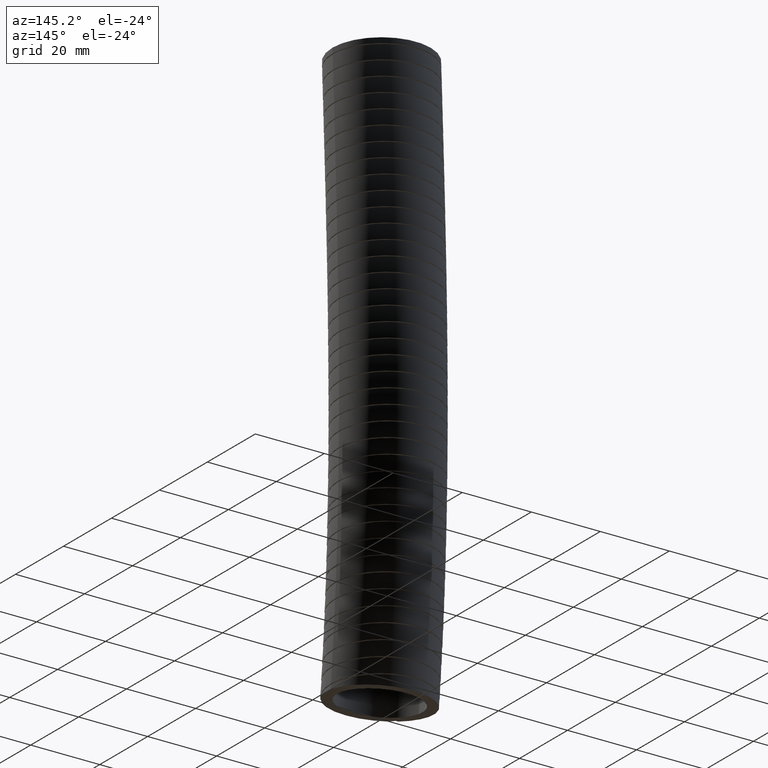
[diagram: clean part render]
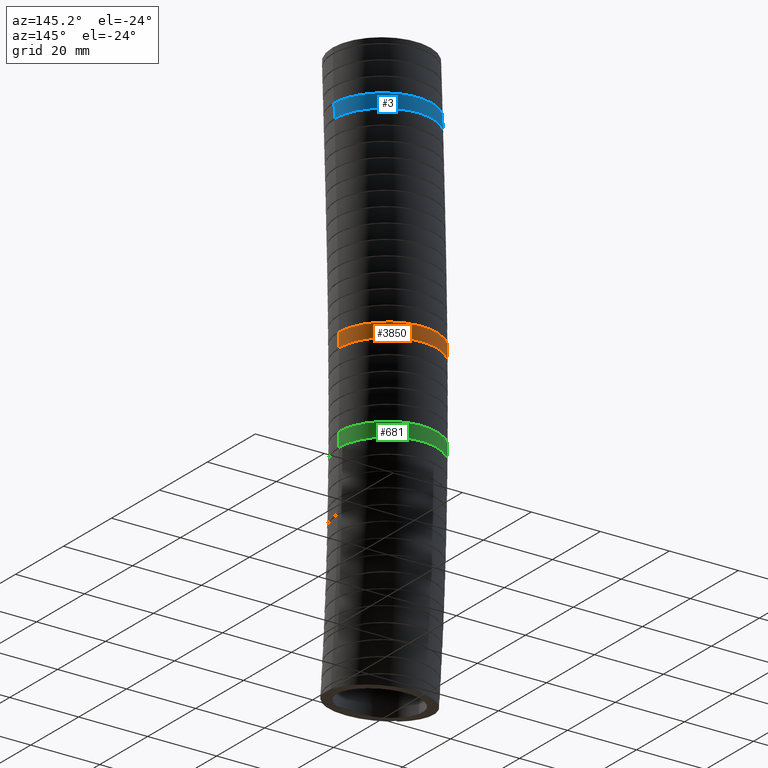
[diagram: same view with three faces highlighted in distinct colors, each labeled with its STEP entity id]
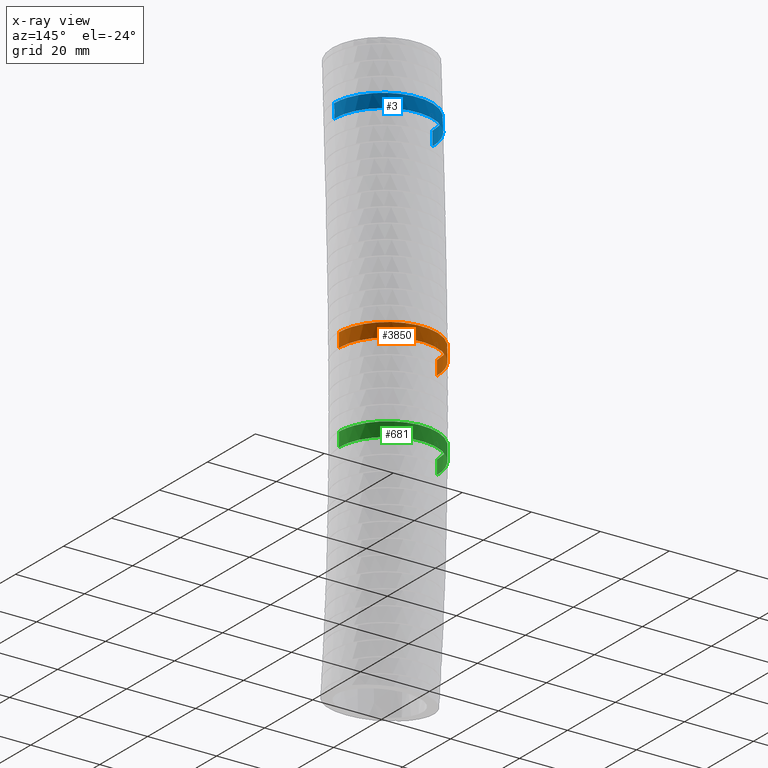
[diagram: x-ray of the same camera — body ghosted, the three highlighted faces saturated]
A machine part, auxiliary view with three faces highlighted in distinct colors.
The next image is the same camera in x-ray (body ghosted, the three faces saturated) — at least one of them is partly hidden behind the body in this view.
Their STEP definitions:

[orange] entity #3850 — the highlighted face is a freeform B-spline surface patch.
#701 = VERTEX_POINT ( 'NONE', #19093 ) ;
#757 = VERTEX_POINT ( 'NONE', #19967 ) ;
#762 = EDGE_CURVE ( 'NONE', #701, #757, #20122, .T. ) ;
#794 = EDGE_CURVE ( 'NONE', #757, #797, #20483, .T. ) ;
#795 = VERTEX_POINT ( 'NONE', #20591 ) ;
#797 = VERTEX_POINT ( 'NONE', #20590 ) ;
#799 = EDGE_CURVE ( 'NONE', #795, #797, #20588, .T. ) ;
#3525 = ORIENTED_EDGE ( 'NONE', *, *, #3544, .T. ) ;
#3544 = EDGE_CURVE ( 'NONE', #795, #701, #7886, .T. ) ;
#3656 = EDGE_LOOP ( 'NONE', ( #3659, #3525, #10811, #10791 ) ) ;
#3659 = ORIENTED_EDGE ( 'NONE', *, *, #799, .F. ) ;
#3850 = ADVANCED_FACE ( 'NONE', ( #8007 ), #8064, .T. ) ;
#7859 = CARTESIAN_POINT ( 'NONE',  ( 0.07281541185949587400, 0.6577474294353369300, -2.958170664740729500 ) ) ;
#7860 = CARTESIAN_POINT ( 'NONE',  ( 0.03641259358145013100, 0.6613125928640775100, -2.958170664740728200 ) ) ;
#7861 = CARTESIAN_POINT ( 'NONE',  ( 0.01799361367819290700, 0.6622130398673121700, -2.958170664740728200 ) ) ;
#7862 = CARTESIAN_POINT ( 'NONE',  ( -0.03737686550679218000, 0.6621672653055393800, -2.958170664740728200 ) ) ;
#7863 = CARTESIAN_POINT ( 'NONE',  ( -0.07371368626435011200, 0.6585249466797213900, -2.958170664740727800 ) ) ;
#7864 = CARTESIAN_POINT ( 'NONE',  ( -0.1273835313944741100, 0.6478307449109930200, -2.958170664740726900 ) ) ;
#7865 = CARTESIAN_POINT ( 'NONE',  ( -0.1451332300664742400, 0.6433878451257016900, -2.958170664740726000 ) ) ;
#7866 = CARTESIAN_POINT ( 'NONE',  ( -0.1803447848891697500, 0.6326997353365202400, -2.958170664740726000 ) ) ;
#7867 = CARTESIAN_POINT ( 'NONE',  ( -0.1977990139609515400, 0.6264428737248738400, -2.958170664740726900 ) ) ;
#7868 = CARTESIAN_POINT ( 'NONE',  ( -0.2485740770956668700, 0.6053747066220756000, -2.958170664740726900 ) ) ;
#7869 = CARTESIAN_POINT ( 'NONE',  ( -0.2807212928337236000, 0.5881792286645165500, -2.958170664740725500 ) ) ;
#7870 = CARTESIAN_POINT ( 'NONE',  ( -0.3263939026323216000, 0.5576721087831396600, -2.958170664740726400 ) ) ;
#7871 = CARTESIAN_POINT ( 'NONE',  ( -0.3412628962372449800, 0.5466502811199266400, -2.958170664740726900 ) ) ;
#7872 = CARTESIAN_POINT ( 'NONE',  ( -0.3697381279144778000, 0.5232682409711174600, -2.958170664740726900 ) ) ;
#7873 = CARTESIAN_POINT ( 'NONE',  ( -0.3832976946185955300, 0.5109605346508445700, -2.958170664740726900 ) ) ;
#7874 = CARTESIAN_POINT ( 'NONE',  ( -0.4219989440421017000, 0.4722389226610596000, -2.958170664740727800 ) ) ;
#7875 = CARTESIAN_POINT ( 'NONE',  ( -0.4451821459224016300, 0.4440437770565475200, -2.958170664740726400 ) ) ;
#7876 = CARTESIAN_POINT ( 'NONE',  ( -0.4759094171953824300, 0.3980698253761954000, -2.958170664740726900 ) ) ;
#7877 = CARTESIAN_POINT ( 'NONE',  ( -0.4854088188179600500, 0.3822047686110250400, -2.958170664740729100 ) ) ;
#7878 = CARTESIAN_POINT ( 'NONE',  ( -0.5026527855643226900, 0.3499168368783833700, -2.958170664740728700 ) ) ;
#7879 = CARTESIAN_POINT ( 'NONE',  ( -0.5182405616830390000, 0.3169271009912947300, -2.958170664740723800 ) ) ;
#7880 = CARTESIAN_POINT ( 'NONE',  ( -0.5305550106083166700, 0.2825503057978249200, -2.958170664740726900 ) ) ;
#7881 = CARTESIAN_POINT ( 'NONE',  ( -0.5412049049548247600, 0.2474681622590713700, -2.958170664740726900 ) ) ;
#7882 = CARTESIAN_POINT ( 'NONE',  ( -0.5457138787163375900, 0.2294722666819844200, -2.958170664740725500 ) ) ;
#7883 = CARTESIAN_POINT ( 'NONE',  ( -0.5564557007883144100, 0.1753596501967865700, -2.958170664740726400 ) ) ;
#7884 = CARTESIAN_POINT ( 'NONE',  ( -0.5600000000000000500, 0.1390547264894816700, -2.958170664740726900 ) ) ;
#7885 = CARTESIAN_POINT ( 'NONE',  ( -0.5600000000000000500, 0.1025245713177013500, -2.958170664740725500 ) ) ;
#7886 = B_SPLINE_CURVE_WITH_KNOTS ( 'NONE', 3,
 ( #7885, #7884, #7883, #7882, #7881, #7880, #7879, #7878, #7877, #7876, #7875, #7874, #7873, #7872, #7871, #7870, #7869, #7868, #7867, #7866, #7865, #7864, #7863, #7862, #7861, #7860, #7859, #7935, #7934, #7932, #7931, #7930, #7929, #7928, #7927, #7926, #7925, #7924, #7923, #7922, #7921, #7920, #7919, #7918, #7917, #7916, #7915, #7914, #7913 ),
 .UNSPECIFIED., .F., .F.,
 ( 4, 2, 2, 1, 2, 2, 2, 2, 2, 2, 2, 2, 2, 2, 2, 2, 2, 2, 2, 2, 2, 2, 2, 2, 4 ),
 ( 0.04445736551528427900, 0.04723536059654842600, 0.04862435813718049600, 0.05001335567781256500, 0.05140235321844463500, 0.05279135075907670500, 0.05556934584034085200, 0.05695834338097291400, 0.05834734092160499100, 0.06112533600286911700, 0.06251433354350119400, 0.06390333108413326400, 0.06668132616539738900, 0.06807032370602945900, 0.06945932124666151500, 0.07084831878729358500, 0.07223731632792565500, 0.07501531140918979400, 0.07779330649045393400, 0.08057130157171807400, 0.08196029911235014300, 0.08334929665298219900, 0.08473829419361425500, 0.08612729173424632500, 0.08890528681551046500 ),
 .UNSPECIFIED. ) ;
#7913 = CARTESIAN_POINT ( 'NONE',  ( 0.5600000000000000500, 0.1025245713120929900, -2.958170664548905200 ) ) ;
#7914 = CARTESIAN_POINT ( 'NONE',  ( 0.5599999999999999400, 0.1395062146662345600, -2.958170664548904800 ) ) ;
#7915 = CARTESIAN_POINT ( 'NONE',  ( 0.5563679296429032700, 0.1761039911398782100, -2.958170664740728700 ) ) ;
#7916 = CARTESIAN_POINT ( 'NONE',  ( 0.5454932077036728200, 0.2304272125478621100, -2.958170664740728200 ) ) ;
#7917 = CARTESIAN_POINT ( 'NONE',  ( 0.5409779743903624400, 0.2483068011436788100, -2.958170664740729100 ) ) ;
#7918 = CARTESIAN_POINT ( 'NONE',  ( 0.5302996767327332600, 0.2832960891135900500, -2.958170664740728700 ) ) ;
#7919 = CARTESIAN_POINT ( 'NONE',  ( 0.5241263467217538400, 0.3004581717169669300, -2.958170664740727800 ) ) ;
#7920 = CARTESIAN_POINT ( 'NONE',  ( 0.5101282139220985100, 0.3341239474990592200, -2.958170664740728200 ) ) ;
#7921 = CARTESIAN_POINT ( 'NONE',  ( 0.5023034447316122600, 0.3506276540722990700, -2.958170664740729500 ) ) ;
#7922 = CARTESIAN_POINT ( 'NONE',  ( 0.4849714669887947900, 0.3829643324065339900, -2.958170664740729100 ) ) ;
#7923 = CARTESIAN_POINT ( 'NONE',  ( 0.4754064947121255900, 0.3988735621575353300, -2.958170664740728200 ) ) ;
#7924 = CARTESIAN_POINT ( 'NONE',  ( 0.4447038353819582300, 0.4446530736373529600, -2.958170664740728200 ) ) ;
#7925 = CARTESIAN_POINT ( 'NONE',  ( 0.4215115072294545200, 0.4727985276330988200, -2.958170664740728200 ) ) ;
#7926 = CARTESIAN_POINT ( 'NONE',  ( 0.3697708653891791900, 0.5244210032525931100, -2.958170664740728200 ) ) ;
#7927 = CARTESIAN_POINT ( 'NONE',  ( 0.3409192236709044400, 0.5480325452588942200, -2.958170664740726900 ) ) ;
#7928 = CARTESIAN_POINT ( 'NONE',  ( 0.2800769275307427000, 0.5885455779404352700, -2.958170664740726900 ) ) ;
#7929 = CARTESIAN_POINT ( 'NONE',  ( 0.2479018694818893600, 0.6057127701167328600, -2.958170664740728200 ) ) ;
#7930 = CARTESIAN_POINT ( 'NONE',  ( 0.1969674052194947700, 0.6267573335094784900, -2.958170664740728200 ) ) ;
#7931 = CARTESIAN_POINT ( 'NONE',  ( 0.1794806754649387600, 0.6329907723426926300, -2.958170664740724200 ) ) ;
#7932 = CARTESIAN_POINT ( 'NONE',  ( 0.1443510144729959500, 0.6435951535733548400, -2.958170664740726000 ) ) ;
#7934 = CARTESIAN_POINT ( 'NONE',  ( 0.1266251110751217800, 0.6480067808224265800, -2.958170664740726000 ) ) ;
#7935 = CARTESIAN_POINT ( 'NONE',  ( 0.09085731350190118200, 0.6550829393959041200, -2.958170664740726900 ) ) ;
#8007 = FACE_OUTER_BOUND ( 'NONE', #3656, .T. ) ;
#8050 = CARTESIAN_POINT ( 'NONE',  ( 0.5600000000000000500, -1.038554811762124600, -5.312990694533671600 ) ) ;
#8051 = CARTESIAN_POINT ( 'NONE',  ( 0.5600000000000000500, -0.9771104778072428100, -3.204996504641237600 ) ) ;
#8052 = CARTESIAN_POINT ( 'NONE',  ( 0.5600000000000001600, -1.065674484793228500, -1.218515421415292500 ) ) ;
#8053 = CARTESIAN_POINT ( 'NONE',  ( 0.5600000000000000500, -1.120000000000000100, 0.0000000000000000000 ) ) ;
#8054 = CARTESIAN_POINT ( 'NONE',  ( 0.5600000000000000500, -0.03000000000000004700, -6.570000000000001200 ) ) ;
#8055 = CARTESIAN_POINT ( 'NONE',  ( 0.5599999999999999400, -0.01258014398173752300, -6.380031713690432800 ) ) ;
#8056 = CARTESIAN_POINT ( 'NONE',  ( 0.5599999999999999400, 0.07545784880698538900, -5.419953363865131400 ) ) ;
#8057 = CARTESIAN_POINT ( 'NONE',  ( 0.5599999999999999400, 0.1443774054838783700, -3.232434222864085900 ) ) ;
#8058 = CARTESIAN_POINT ( 'NONE',  ( 0.5600000000000000500, 0.05489119717643108800, -1.228947034284315200 ) ) ;
#8060 = CARTESIAN_POINT ( 'NONE',  ( 0.5600000000000000500, 0.0000000000000000000, 0.0000000000000000000 ) ) ;
#8064 =( BOUNDED_SURFACE ( )  B_SPLINE_SURFACE ( 3, 3, ( 
 ( #8060, #8058, #8057, #8056, #8055, #8054 ),
 ( #8053, #8052, #8051, #8050, #8098, #8097 ),
 ( #8096, #8095, #8094, #8093, #8092, #8091 ),
 ( #8090, #8089, #8088, #8087, #8086, #8085 ),
 ( #8084, #8083, #8082, #8081, #8080, #8079 ),
 ( #8078, #8077, #8076, #8075, #8074, #8073 ),
 ( #8072, #8071, #8070, #8069, #8068, #8067 ) ),
 .UNSPECIFIED., .F., .F., .F. ) 
 B_SPLINE_SURFACE_WITH_KNOTS ( ( 4, 3, 4 ),
 ( 4, 1, 1, 4 ),
 ( 0.0000000000000000000, 0.5000000000000000000, 1.000000000000000000 ),
 ( 0.0000000000000000000, 0.5599999999999999400, 0.9129383075960209000, 1.000000000000000000 ),
 .UNSPECIFIED. ) 
 GEOMETRIC_REPRESENTATION_ITEM ( )  RATIONAL_B_SPLINE_SURFACE ( (
 ( 1.000000000000000000, 1.000000000000000000, 1.000000000000000200, 1.000000000000000000, 1.000000000000000000, 1.000000000000000000),
 ( 0.3333333333333333100, 0.3333333333333333100, 0.3333333333333333100, 0.3333333333333333100, 0.3333333333333333100, 0.3333333333333333100),
 ( 0.3333333333333333100, 0.3333333333333333100, 0.3333333333333333100, 0.3333333333333333100, 0.3333333333333333100, 0.3333333333333333100),
 ( 1.000000000000000000, 1.000000000000000000, 1.000000000000000200, 1.000000000000000000, 1.000000000000000000, 1.000000000000000000),
 ( 0.3333333333333333100, 0.3333333333333333100, 0.3333333333333333100, 0.3333333333333333100, 0.3333333333333333100, 0.3333333333333333100),
 ( 0.3333333333333333100, 0.3333333333333333100, 0.3333333333333333100, 0.3333333333333333100, 0.3333333333333333100, 0.3333333333333333100),
 ( 1.000000000000000000, 1.000000000000000000, 1.000000000000000200, 1.000000000000000000, 1.000000000000000000, 1.000000000000000000) ) ) 
 REPRESENTATION_ITEM ( '' )  SURFACE ( )  );
#8067 = CARTESIAN_POINT ( 'NONE',  ( 0.5600000000000000500, -0.03000000000000004700, -6.570000000000001200 ) ) ;
#8068 = CARTESIAN_POINT ( 'NONE',  ( 0.5599999999999999400, -0.01258014398173752300, -6.380031713690432800 ) ) ;
#8069 = CARTESIAN_POINT ( 'NONE',  ( 0.5599999999999999400, 0.07545784880698538900, -5.419953363865131400 ) ) ;
#8070 = CARTESIAN_POINT ( 'NONE',  ( 0.5599999999999999400, 0.1443774054838783700, -3.232434222864085900 ) ) ;
#8071 = CARTESIAN_POINT ( 'NONE',  ( 0.5600000000000000500, 0.05489119717643108800, -1.228947034284315200 ) ) ;
#8072 = CARTESIAN_POINT ( 'NONE',  ( 0.5600000000000000500, 0.0000000000000000000, 0.0000000000000000000 ) ) ;
#8073 = CARTESIAN_POINT ( 'NONE',  ( 0.5600000000000000500, 1.079646258180000800, -6.721938085110754600 ) ) ;
#8074 = CARTESIAN_POINT ( 'NONE',  ( 0.5600000000000000500, 1.097787370148356700, -6.524540619502538200 ) ) ;
#8075 = CARTESIAN_POINT ( 'NONE',  ( 0.5600000000000000500, 1.189470509376095100, -5.526916033196590300 ) ) ;
#8076 = CARTESIAN_POINT ( 'NONE',  ( 0.5600000000000000500, 1.265865288774999700, -3.259871941086932300 ) ) ;
#8077 = CARTESIAN_POINT ( 'NONE',  ( 0.5600000000000001600, 1.175456879146091100, -1.239378647153337200 ) ) ;
#8078 = CARTESIAN_POINT ( 'NONE',  ( 0.5600000000000000500, 1.120000000000000100, 0.0000000000000000000 ) ) ;
#8079 = CARTESIAN_POINT ( 'NONE',  ( -0.5599999999999999400, 1.079646258180000800, -6.721938085110754600 ) ) ;
#8080 = CARTESIAN_POINT ( 'NONE',  ( -0.5599999999999999400, 1.097787370148356700, -6.524540619502538200 ) ) ;
#8081 = CARTESIAN_POINT ( 'NONE',  ( -0.5599999999999999400, 1.189470509376095100, -5.526916033196590300 ) ) ;
#8082 = CARTESIAN_POINT ( 'NONE',  ( -0.5599999999999999400, 1.265865288774999700, -3.259871941086932300 ) ) ;
#8083 = CARTESIAN_POINT ( 'NONE',  ( -0.5599999999999999400, 1.175456879146091100, -1.239378647153337200 ) ) ;
#8084 = CARTESIAN_POINT ( 'NONE',  ( -0.5599999999999999400, 1.120000000000000100, 0.0000000000000000000 ) ) ;
#8085 = CARTESIAN_POINT ( 'NONE',  ( -0.5600000000000000500, -0.02999999999999997800, -6.570000000000001200 ) ) ;
#8086 = CARTESIAN_POINT ( 'NONE',  ( -0.5599999999999999400, -0.01258014398173745500, -6.380031713690432800 ) ) ;
#8087 = CARTESIAN_POINT ( 'NONE',  ( -0.5599999999999999400, 0.07545784880698545900, -5.419953363865131400 ) ) ;
#8088 = CARTESIAN_POINT ( 'NONE',  ( -0.5599999999999999400, 0.1443774054838784200, -3.232434222864085900 ) ) ;
#8089 = CARTESIAN_POINT ( 'NONE',  ( -0.5600000000000000500, 0.05489119717643116400, -1.228947034284315200 ) ) ;
#8090 = CARTESIAN_POINT ( 'NONE',  ( -0.5600000000000000500, 6.858022075225177600E-017, 0.0000000000000000000 ) ) ;
#8091 = CARTESIAN_POINT ( 'NONE',  ( -0.5600000000000001600, -1.139646258180001100, -6.418061914889248600 ) ) ;
#8092 = CARTESIAN_POINT ( 'NONE',  ( -0.5600000000000001600, -1.122947658111831800, -6.235522807878326500 ) ) ;
#8093 = CARTESIAN_POINT ( 'NONE',  ( -0.5600000000000000500, -1.038554811762124200, -5.312990694533671600 ) ) ;
#8094 = CARTESIAN_POINT ( 'NONE',  ( -0.5600000000000000500, -0.9771104778072428100, -3.204996504641237600 ) ) ;
#8095 = CARTESIAN_POINT ( 'NONE',  ( -0.5600000000000001600, -1.065674484793228500, -1.218515421415292500 ) ) ;
#8096 = CARTESIAN_POINT ( 'NONE',  ( -0.5600000000000001600, -1.119999999999999900, 0.0000000000000000000 ) ) ;
#8097 = CARTESIAN_POINT ( 'NONE',  ( 0.5600000000000000500, -1.139646258180001100, -6.418061914889248600 ) ) ;
#8098 = CARTESIAN_POINT ( 'NONE',  ( 0.5600000000000000500, -1.122947658111831800, -6.235522807878326500 ) ) ;
#10791 = ORIENTED_EDGE ( 'NONE', *, *, #794, .T. ) ;
#10811 = ORIENTED_EDGE ( 'NONE', *, *, #762, .T. ) ;
#19093 = CARTESIAN_POINT ( 'NONE',  ( 0.5600000000000000500, 0.1025245713120929900, -2.958170664548905200 ) ) ;
#19967 = CARTESIAN_POINT ( 'NONE',  ( 0.5599999999999999400, 0.1045980520094049500, -3.118156290294110000 ) ) ;
#20116 = CARTESIAN_POINT ( 'NONE',  ( 0.5599999999999999400, 0.1045980520094049500, -3.118156290294110000 ) ) ;
#20117 = CARTESIAN_POINT ( 'NONE',  ( 0.5600000000000000500, 0.1039969361713812000, -3.064831539776179200 ) ) ;
#20118 = CARTESIAN_POINT ( 'NONE',  ( 0.5600000000000000500, 0.1033042077673191600, -3.011502931831870900 ) ) ;
#20119 = CARTESIAN_POINT ( 'NONE',  ( 0.5600000000000000500, 0.1025245713120929900, -2.958170664548905200 ) ) ;
#20122 = B_SPLINE_CURVE_WITH_KNOTS ( 'NONE', 3,
 ( #20119, #20118, #20117, #20116 ),
 .UNSPECIFIED., .F., .F.,
 ( 4, 4 ),
 ( 0.4495108017290206400, 0.4738437672123378400 ),
 .UNSPECIFIED. ) ;
#20306 = CARTESIAN_POINT ( 'NONE',  ( -0.3967568525654982500, 0.5007891839987864700, -3.118156290485968500 ) ) ;
#20308 = CARTESIAN_POINT ( 'NONE',  ( -0.3697210969874879000, 0.5253152074349613000, -3.118156290485969900 ) ) ;
#20309 = CARTESIAN_POINT ( 'NONE',  ( -0.3414072715376542100, 0.5485696877204677700, -3.118156290485970300 ) ) ;
#20483 = B_SPLINE_CURVE_WITH_KNOTS ( 'NONE', 3,
 ( #20569, #20568, #20567, #20566, #20565, #20564, #20563, #20562, #20561, #20560, #20559, #20558, #20557, #20556, #20555, #20554, #20553, #20552, #20551, #20550, #20549, #20548, #20547, #20546, #20545, #20544, #20543, #20542, #20541, #20540, #20539, #20538, #20537, #20536, #20309, #20308, #20306, #20603, #20602, #20601, #20600, #20599, #20598, #20597, #20596, #20595, #20594, #20593, #20592 ),
 .UNSPECIFIED., .F., .F.,
 ( 4, 2, 2, 2, 2, 2, 2, 2, 2, 2, 2, 2, 2, 2, 2, 2, 2, 2, 1, 2, 2, 2, 2, 2, 4 ),
 ( 0.0000000000000000000, 0.001404105079548623900, 0.002808210159097247700, 0.005616420318194498100, 0.007020525397743124600, 0.008424630477291750200, 0.01123284063638900300, 0.01263694571593762400, 0.01404105079548624900, 0.01684926095458350000, 0.01965747111368075200, 0.02106157619322937500, 0.02246568127277800300, 0.02527389143187524700, 0.02667799651142387400, 0.02808210159097249800, 0.03089031175006974300, 0.03229441682961836600, 0.03369852190916699400, 0.03510262698871562100, 0.03650673206826424200, 0.03931494222736149600, 0.04071904730691012400, 0.04212315238645875100, 0.04493136254555600600 ),
 .UNSPECIFIED. ) ;
#20536 = CARTESIAN_POINT ( 'NONE',  ( -0.3265238152580373600, 0.5596164367366776000, -3.118156290485969000 ) ) ;
#20537 = CARTESIAN_POINT ( 'NONE',  ( -0.2806143821787525100, 0.5902863823160545700, -3.118156290485969900 ) ) ;
#20538 = CARTESIAN_POINT ( 'NONE',  ( -0.2484283972330217600, 0.6074663767653357700, -3.118156290485969000 ) ) ;
#20539 = CARTESIAN_POINT ( 'NONE',  ( -0.1978367261451845500, 0.6284539753906415200, -3.118156290485968500 ) ) ;
#20540 = CARTESIAN_POINT ( 'NONE',  ( -0.1805846286240274400, 0.6346470724121593400, -3.118156290485971200 ) ) ;
#20541 = CARTESIAN_POINT ( 'NONE',  ( -0.1452793011082089700, 0.6453766136856261500, -3.118156290485971200 ) ) ;
#20542 = CARTESIAN_POINT ( 'NONE',  ( -0.1273770918510741800, 0.6498597412130315800, -3.118156290485970800 ) ) ;
#20543 = CARTESIAN_POINT ( 'NONE',  ( -0.07355927439263830500, 0.6605768386923318600, -3.118156290485971200 ) ) ;
#20544 = CARTESIAN_POINT ( 'NONE',  ( -0.03727911326236555600, 0.6641833749846970400, -3.118156290485966800 ) ) ;
#20545 = CARTESIAN_POINT ( 'NONE',  ( 0.01774856766124965200, 0.6642417048466244800, -3.118156290485968500 ) ) ;
#20546 = CARTESIAN_POINT ( 'NONE',  ( 0.03628862333046444000, 0.6633481675491822400, -3.118156290485969900 ) ) ;
#20547 = CARTESIAN_POINT ( 'NONE',  ( 0.07286431562298177600, 0.6597688627730027300, -3.118156290485968100 ) ) ;
#20548 = CARTESIAN_POINT ( 'NONE',  ( 0.09095005395897477800, 0.6570930736540173700, -3.118156290485973000 ) ) ;
#20549 = CARTESIAN_POINT ( 'NONE',  ( 0.1446146408233237600, 0.6464673427546391300, -3.118156290485973000 ) ) ;
#20550 = CARTESIAN_POINT ( 'NONE',  ( 0.1796066802332970100, 0.6359445508051208000, -3.118156290485970300 ) ) ;
#20551 = CARTESIAN_POINT ( 'NONE',  ( 0.2479562208495405800, 0.6077323742917298800, -3.118156290485969900 ) ) ;
#20552 = CARTESIAN_POINT ( 'NONE',  ( 0.2802038998140971000, 0.5904974547517697300, -3.118156290485969900 ) ) ;
#20553 = CARTESIAN_POINT ( 'NONE',  ( 0.3257336616626415000, 0.5601748524517180500, -3.118156290485970300 ) ) ;
#20554 = CARTESIAN_POINT ( 'NONE',  ( 0.3404371464263565300, 0.5493150699848629000, -3.118156290485969900 ) ) ;
#20555 = CARTESIAN_POINT ( 'NONE',  ( 0.3688765552027412600, 0.5260570520407382700, -3.118156290485970300 ) ) ;
#20556 = CARTESIAN_POINT ( 'NONE',  ( 0.3826493934215765600, 0.5136092220364446600, -3.118156290485972500 ) ) ;
#20557 = CARTESIAN_POINT ( 'NONE',  ( 0.4216178291991196100, 0.4747335923586814000, -3.118156290485970800 ) ) ;
#20558 = CARTESIAN_POINT ( 'NONE',  ( 0.4447822712297545600, 0.4465764644180869600, -3.118156290485969900 ) ) ;
#20559 = CARTESIAN_POINT ( 'NONE',  ( 0.4753463739429829600, 0.4010119189887179100, -3.118156290485969000 ) ) ;
#20560 = CARTESIAN_POINT ( 'NONE',  ( 0.4848601119937442400, 0.3852126046725867800, -3.118156290485969000 ) ) ;
#20561 = CARTESIAN_POINT ( 'NONE',  ( 0.5023053790265661300, 0.3526835742929862500, -3.118156290485969000 ) ) ;
#20562 = CARTESIAN_POINT ( 'NONE',  ( 0.5101570438013904900, 0.3361158825512283700, -3.118156290485969900 ) ) ;
#20563 = CARTESIAN_POINT ( 'NONE',  ( 0.5311811540791340200, 0.2855318288682273100, -3.118156290485970300 ) ) ;
#20564 = CARTESIAN_POINT ( 'NONE',  ( 0.5418466705669289200, 0.2506428270048881600, -3.118156290485970300 ) ) ;
#20565 = CARTESIAN_POINT ( 'NONE',  ( 0.5527006699987313500, 0.1965186472621598700, -3.118156290485969900 ) ) ;
#20566 = CARTESIAN_POINT ( 'NONE',  ( 0.5554442473674230400, 0.1781802033152772900, -3.118156290485970800 ) ) ;
#20567 = CARTESIAN_POINT ( 'NONE',  ( 0.5590851942672888700, 0.1415027273983970000, -3.118156290485971200 ) ) ;
#20568 = CARTESIAN_POINT ( 'NONE',  ( 0.5599999999999999400, 0.1230885101398603300, -3.118156290294109100 ) ) ;
#20569 = CARTESIAN_POINT ( 'NONE',  ( 0.5599999999999999400, 0.1045980520094049500, -3.118156290294110000 ) ) ;
#20582 = CARTESIAN_POINT ( 'NONE',  ( -0.5600000000000000500, 0.1045980520137306100, -3.118156290485969900 ) ) ;
#20583 = CARTESIAN_POINT ( 'NONE',  ( -0.5600000000000000500, 0.1039969361737639600, -3.064831539968056400 ) ) ;
#20585 = CARTESIAN_POINT ( 'NONE',  ( -0.5600000000000000500, 0.1033042077699157900, -3.011502932023740500 ) ) ;
#20586 = CARTESIAN_POINT ( 'NONE',  ( -0.5600000000000000500, 0.1025245713177013500, -2.958170664740725500 ) ) ;
#20588 = B_SPLINE_CURVE_WITH_KNOTS ( 'NONE', 3,
 ( #20586, #20585, #20583, #20582 ),
 .UNSPECIFIED., .F., .F.,
 ( 4, 4 ),
 ( 0.4495108017581996900, 0.4738437672415245500 ),
 .UNSPECIFIED. ) ;
#20590 = CARTESIAN_POINT ( 'NONE',  ( -0.5600000000000000500, 0.1045980520137306100, -3.118156290485969900 ) ) ;
#20591 = CARTESIAN_POINT ( 'NONE',  ( -0.5600000000000000500, 0.1025245713177013500, -2.958170664740725500 ) ) ;
#20592 = CARTESIAN_POINT ( 'NONE',  ( -0.5600000000000000500, 0.1045980520137306100, -3.118156290485969900 ) ) ;
#20593 = CARTESIAN_POINT ( 'NONE',  ( -0.5600000000000001600, 0.1412660975844431700, -3.118156290485969000 ) ) ;
#20594 = CARTESIAN_POINT ( 'NONE',  ( -0.5564280295507608700, 0.1775479620260441400, -3.118156290485971600 ) ) ;
#20595 = CARTESIAN_POINT ( 'NONE',  ( -0.5457433685287108600, 0.2313948656022487600, -3.118156290485971600 ) ) ;
#20596 = CARTESIAN_POINT ( 'NONE',  ( -0.5412627544676440500, 0.2493263397031659800, -3.118156290485970800 ) ) ;
#20597 = CARTESIAN_POINT ( 'NONE',  ( -0.5305575492503343800, 0.2846111613075703600, -3.118156290485970800 ) ) ;
#20598 = CARTESIAN_POINT ( 'NONE',  ( -0.5243749701602609100, 0.3018574981606637600, -3.118156290485970300 ) ) ;
#20599 = CARTESIAN_POINT ( 'NONE',  ( -0.5034113904179986500, 0.3524436419945076200, -3.118156290485970300 ) ) ;
#20600 = CARTESIAN_POINT ( 'NONE',  ( -0.4862375546586058500, 0.3846415616185787600, -3.118156290485970800 ) ) ;
#20601 = CARTESIAN_POINT ( 'NONE',  ( -0.4555503721535816300, 0.4305874947572698200, -3.118156290485970800 ) ) ;
#20602 = CARTESIAN_POINT ( 'NONE',  ( -0.4445151380057929500, 0.4454561511690734400, -3.118156290485970800 ) ) ;
#20603 = CARTESIAN_POINT ( 'NONE',  ( -0.4212743339014465300, 0.4737577463950521900, -3.118156290485971200 ) ) ;

[blue] entity #3 — the highlighted face is a freeform B-spline surface patch.
#1 = EDGE_CURVE ( 'NONE', #31, #69, #12555, .T. ) ;
#2 = ORIENTED_EDGE ( 'NONE', *, *, #1, .T. ) ;
#3 = ADVANCED_FACE ( 'NONE', ( #12558 ), #12665, .T. ) ;
#4 = EDGE_LOOP ( 'NONE', ( #5, #2, #21105, #226 ) ) ;
#5 = ORIENTED_EDGE ( 'NONE', *, *, #203, .F. ) ;
#31 = VERTEX_POINT ( 'NONE', #13047 ) ;
#69 = VERTEX_POINT ( 'NONE', #13572 ) ;
#203 = EDGE_CURVE ( 'NONE', #31, #423, #15253, .T. ) ;
#226 = ORIENTED_EDGE ( 'NONE', *, *, #233, .T. ) ;
#233 = EDGE_CURVE ( 'NONE', #445, #423, #15523, .T. ) ;
#423 = VERTEX_POINT ( 'NONE', #16530 ) ;
#445 = VERTEX_POINT ( 'NONE', #16615 ) ;
#462 = EDGE_CURVE ( 'NONE', #69, #445, #16748, .T. ) ;
#12501 = CARTESIAN_POINT ( 'NONE',  ( 0.4215683424526835400, 0.3961011558135685300, -0.5795015996492505200 ) ) ;
#12503 = CARTESIAN_POINT ( 'NONE',  ( 0.3698349075523233400, 0.4477637242390674600, -0.5795015996492505200 ) ) ;
#12504 = CARTESIAN_POINT ( 'NONE',  ( 0.3409850971150693600, 0.4713957079029350000, -0.5795015996492503000 ) ) ;
#12505 = CARTESIAN_POINT ( 'NONE',  ( 0.2801403532865159900, 0.5119471516254572300, -0.5795015996492504100 ) ) ;
#12506 = CARTESIAN_POINT ( 'NONE',  ( 0.2479613216128178600, 0.5291323229862461300, -0.5795015996492505200 ) ) ;
#12508 = CARTESIAN_POINT ( 'NONE',  ( 0.1970156981109600900, 0.5502002103441464600, -0.5795015996492503000 ) ) ;
#12509 = CARTESIAN_POINT ( 'NONE',  ( 0.1795253614078224900, 0.5564404145307652000, -0.5795015996492501900 ) ) ;
#12511 = CARTESIAN_POINT ( 'NONE',  ( 0.1443883912841075800, 0.5670563345824155600, -0.5795015996492499700 ) ) ;
#12513 = CARTESIAN_POINT ( 'NONE',  ( 0.1266581759643774800, 0.5714729479084589300, -0.5795015996492503000 ) ) ;
#12515 = CARTESIAN_POINT ( 'NONE',  ( 0.09088041076957736900, 0.5785572432699677100, -0.5795015996492504100 ) ) ;
#12517 = CARTESIAN_POINT ( 'NONE',  ( 0.07283285366738234700, 0.5812248854744500600, -0.5795015996492505200 ) ) ;
#12518 = CARTESIAN_POINT ( 'NONE',  ( 0.03641730847765227400, 0.5847941731859183100, -0.5795015996492505200 ) ) ;
#12519 = CARTESIAN_POINT ( 'NONE',  ( 0.01798884454185866600, 0.5856955501093587000, -0.5795015996492504100 ) ) ;
#12520 = CARTESIAN_POINT ( 'NONE',  ( -0.03739420084223686600, 0.5856488516538751500, -0.5795015996492505200 ) ) ;
#12521 = CARTESIAN_POINT ( 'NONE',  ( -0.07374060619993778900, 0.5820021214714906600, -0.5795015996492506300 ) ) ;
#12523 = CARTESIAN_POINT ( 'NONE',  ( -0.1274263668450030000, 0.5712944889259341500, -0.5795015996492507400 ) ) ;
#12526 = CARTESIAN_POINT ( 'NONE',  ( -0.1451816289785795600, 0.5668459681939227400, -0.5795015996492509600 ) ) ;
#12528 = CARTESIAN_POINT ( 'NONE',  ( -0.1804047968259008300, 0.5561439921884305800, -0.5795015996492508500 ) ) ;
#12530 = CARTESIAN_POINT ( 'NONE',  ( -0.1978605942844983400, 0.5498803808510808200, -0.5795015996492505200 ) ) ;
#12531 = CARTESIAN_POINT ( 'NONE',  ( -0.2486402760993159900, 0.5287903006170676700, -0.5795015996492505200 ) ) ;
#12532 = CARTESIAN_POINT ( 'NONE',  ( -0.2807903251677511500, 0.5115773628783220100, -0.5795015996492503000 ) ) ;
#12533 = CARTESIAN_POINT ( 'NONE',  ( -0.3264665021944506100, 0.4810392038039217300, -0.5795015996492501900 ) ) ;
#12535 = CARTESIAN_POINT ( 'NONE',  ( -0.3413375169097401800, 0.4700052414421233000, -0.5795015996492504100 ) ) ;
#12536 = CARTESIAN_POINT ( 'NONE',  ( -0.3698077732232488100, 0.4466051018292968600, -0.5795015996492501900 ) ) ;
#12537 = CARTESIAN_POINT ( 'NONE',  ( -0.3833647803125609900, 0.4342881350886589300, -0.5795015996492503000 ) ) ;
#12539 = CARTESIAN_POINT ( 'NONE',  ( -0.4220581508767194400, 0.3955381362769775400, -0.5795015996492504100 ) ) ;
#12540 = CARTESIAN_POINT ( 'NONE',  ( -0.4452358321098339700, 0.3673232615113818900, -0.5795015996492505200 ) ) ;
#12541 = CARTESIAN_POINT ( 'NONE',  ( -0.4759544931149677400, 0.3213185494715019000, -0.5795015996492504100 ) ) ;
#12542 = CARTESIAN_POINT ( 'NONE',  ( -0.4854488192997624100, 0.3054466621481885500, -0.5795015996492503000 ) ) ;
#12543 = CARTESIAN_POINT ( 'NONE',  ( -0.5026846165865713800, 0.2731434855664577900, -0.5795015996492505200 ) ) ;
#12544 = CARTESIAN_POINT ( 'NONE',  ( -0.5182647342751728300, 0.2401387759451428500, -0.5795015996492505200 ) ) ;
#12545 = CARTESIAN_POINT ( 'NONE',  ( -0.5305726636861841600, 0.2057475974738418600, -0.5795015996492503000 ) ) ;
#12546 = CARTESIAN_POINT ( 'NONE',  ( -0.5412167075018191600, 0.1706514089749313300, -0.5795015996492505200 ) ) ;
#12548 = CARTESIAN_POINT ( 'NONE',  ( -0.5457230160124089100, 0.1526487894133423100, -0.5795015996492506300 ) ) ;
#12549 = CARTESIAN_POINT ( 'NONE',  ( -0.5564580311769987700, 0.09851868996326262900, -0.5795015996492505200 ) ) ;
#12551 = CARTESIAN_POINT ( 'NONE',  ( -0.5600000000000005000, 0.06220243984496046800, -0.5795015996492507400 ) ) ;
#12552 = CARTESIAN_POINT ( 'NONE',  ( -0.5600000000000002800, 0.02566129117171803800, -0.5795015996492507400 ) ) ;
#12555 = B_SPLINE_CURVE_WITH_KNOTS ( 'NONE', 3,
 ( #12552, #12551, #12549, #12548, #12546, #12545, #12544, #12543, #12542, #12541, #12540, #12539, #12537, #12536, #12535, #12533, #12532, #12531, #12530, #12528, #12526, #12523, #12521, #12520, #12519, #12518, #12517, #12515, #12513, #12511, #12509, #12508, #12506, #12505, #12504, #12503, #12501, #12623, #12620, #12618, #12617, #12616, #12615, #12614, #12613, #12610, #12608, #12606, #12604 ),
 .UNSPECIFIED., .F., .F.,
 ( 4, 2, 2, 1, 2, 2, 2, 2, 2, 2, 2, 2, 2, 2, 2, 2, 2, 2, 2, 2, 2, 2, 2, 2, 4 ),
 ( 0.04447146707087967800, 0.04725030644284905500, 0.04863972612883374300, 0.05002914581481843200, 0.05141856550080312800, 0.05280798518678781600, 0.05558682455875719300, 0.05697624424474188200, 0.05836566393072657000, 0.06114450330269595400, 0.06253392298868064300, 0.06392334267466534500, 0.06670218204663472300, 0.06809160173261942500, 0.06948102141860411400, 0.07087044110458880200, 0.07225986079057350500, 0.07503870016254288200, 0.07781753953451225900, 0.08059637890648165000, 0.08198579859246633800, 0.08337521827845101300, 0.08476463796443571600, 0.08615405765042040400, 0.08893289702238978100 ),
 .UNSPECIFIED. ) ;
#12558 = FACE_OUTER_BOUND ( 'NONE', #4, .T. ) ;
#12604 = CARTESIAN_POINT ( 'NONE',  ( 0.5600000000000000500, 0.02566129117171979400, -0.5795015996492716100 ) ) ;
#12606 = CARTESIAN_POINT ( 'NONE',  ( 0.5599999999999997200, 0.06265405026744758100, -0.5795015996492712800 ) ) ;
#12608 = CARTESIAN_POINT ( 'NONE',  ( 0.5563703149533532100, 0.09926329338466011200, -0.5795015996492504100 ) ) ;
#12610 = CARTESIAN_POINT ( 'NONE',  ( 0.5455024676587698600, 0.1536041204670951800, -0.5795015996492505200 ) ) ;
#12613 = CARTESIAN_POINT ( 'NONE',  ( 0.5409897143164172900, 0.1714911067541415000, -0.5795015996492501900 ) ) ;
#12614 = CARTESIAN_POINT ( 'NONE',  ( 0.5303171037365025400, 0.2064947718650538300, -0.5795015996492503000 ) ) ;
#12615 = CARTESIAN_POINT ( 'NONE',  ( 0.5241469107800483800, 0.2236642923833801800, -0.5795015996492503000 ) ) ;
#12616 = CARTESIAN_POINT ( 'NONE',  ( 0.5101554969582319200, 0.2573453833509654100, -0.5795015996492506300 ) ) ;
#12617 = CARTESIAN_POINT ( 'NONE',  ( 0.5023343102616083500, 0.2738569674167868300, -0.5795015996492510800 ) ) ;
#12618 = CARTESIAN_POINT ( 'NONE',  ( 0.4850098354541435000, 0.3062098023967635400, -0.5795015996492510800 ) ) ;
#12620 = CARTESIAN_POINT ( 'NONE',  ( 0.4754487043286861300, 0.3221276097308084500, -0.5795015996492506300 ) ) ;
#12623 = CARTESIAN_POINT ( 'NONE',  ( 0.4447553732311749200, 0.3679357766900514500, -0.5795015996492507400 ) ) ;
#12627 = CARTESIAN_POINT ( 'NONE',  ( -0.5600000000000001600, -1.119999999999999900, 0.0000000000000000000 ) ) ;
#12630 = CARTESIAN_POINT ( 'NONE',  ( 0.5600000000000000500, -1.139646258180001100, -6.418061914889248600 ) ) ;
#12633 = CARTESIAN_POINT ( 'NONE',  ( 0.5600000000000000500, -1.122947658111831800, -6.235522807878326500 ) ) ;
#12635 = CARTESIAN_POINT ( 'NONE',  ( 0.5600000000000000500, -1.038554811762124600, -5.312990694533671600 ) ) ;
#12636 = CARTESIAN_POINT ( 'NONE',  ( 0.5600000000000000500, -0.9771104778072428100, -3.204996504641237600 ) ) ;
#12637 = CARTESIAN_POINT ( 'NONE',  ( 0.5600000000000001600, -1.065674484793228500, -1.218515421415292500 ) ) ;
#12638 = CARTESIAN_POINT ( 'NONE',  ( 0.5600000000000000500, -1.120000000000000100, 0.0000000000000000000 ) ) ;
#12641 = CARTESIAN_POINT ( 'NONE',  ( 0.5600000000000000500, -0.03000000000000004700, -6.570000000000001200 ) ) ;
#12643 = CARTESIAN_POINT ( 'NONE',  ( 0.5599999999999999400, -0.01258014398173752300, -6.380031713690432800 ) ) ;
#12646 = CARTESIAN_POINT ( 'NONE',  ( 0.5599999999999999400, 0.07545784880698538900, -5.419953363865131400 ) ) ;
#12647 = CARTESIAN_POINT ( 'NONE',  ( 0.5599999999999999400, 0.1443774054838783700, -3.232434222864085900 ) ) ;
#12648 = CARTESIAN_POINT ( 'NONE',  ( 0.5600000000000000500, 0.05489119717643108800, -1.228947034284315200 ) ) ;
#12649 = CARTESIAN_POINT ( 'NONE',  ( 0.5600000000000000500, 0.0000000000000000000, 0.0000000000000000000 ) ) ;
#12665 =( BOUNDED_SURFACE ( )  B_SPLINE_SURFACE ( 3, 3, ( 
 ( #12649, #12648, #12647, #12646, #12643, #12641 ),
 ( #12638, #12637, #12636, #12635, #12633, #12630 ),
 ( #12627, #12738, #12737, #12736, #12734, #12732 ),
 ( #12729, #12727, #12726, #12724, #12723, #12722 ),
 ( #12720, #12719, #12717, #12716, #12714, #12713 ),
 ( #12712, #12710, #12709, #12708, #12706, #12704 ),
 ( #12702, #12701, #12700, #12699, #12698, #12697 ) ),
 .UNSPECIFIED., .F., .F., .F. ) 
 B_SPLINE_SURFACE_WITH_KNOTS ( ( 4, 3, 4 ),
 ( 4, 1, 1, 4 ),
 ( 0.0000000000000000000, 0.5000000000000000000, 1.000000000000000000 ),
 ( 0.0000000000000000000, 0.5599999999999999400, 0.9129383075960209000, 1.000000000000000000 ),
 .UNSPECIFIED. ) 
 GEOMETRIC_REPRESENTATION_ITEM ( )  RATIONAL_B_SPLINE_SURFACE ( (
 ( 1.000000000000000000, 1.000000000000000000, 1.000000000000000200, 1.000000000000000000, 1.000000000000000000, 1.000000000000000000),
 ( 0.3333333333333333100, 0.3333333333333333100, 0.3333333333333333100, 0.3333333333333333100, 0.3333333333333333100, 0.3333333333333333100),
 ( 0.3333333333333333100, 0.3333333333333333100, 0.3333333333333333100, 0.3333333333333333100, 0.3333333333333333100, 0.3333333333333333100),
 ( 1.000000000000000000, 1.000000000000000000, 1.000000000000000200, 1.000000000000000000, 1.000000000000000000, 1.000000000000000000),
 ( 0.3333333333333333100, 0.3333333333333333100, 0.3333333333333333100, 0.3333333333333333100, 0.3333333333333333100, 0.3333333333333333100),
 ( 0.3333333333333333100, 0.3333333333333333100, 0.3333333333333333100, 0.3333333333333333100, 0.3333333333333333100, 0.3333333333333333100),
 ( 1.000000000000000000, 1.000000000000000000, 1.000000000000000200, 1.000000000000000000, 1.000000000000000000, 1.000000000000000000) ) ) 
 REPRESENTATION_ITEM ( '' )  SURFACE ( )  );
#12697 = CARTESIAN_POINT ( 'NONE',  ( 0.5600000000000000500, -0.03000000000000004700, -6.570000000000001200 ) ) ;
#12698 = CARTESIAN_POINT ( 'NONE',  ( 0.5599999999999999400, -0.01258014398173752300, -6.380031713690432800 ) ) ;
#12699 = CARTESIAN_POINT ( 'NONE',  ( 0.5599999999999999400, 0.07545784880698538900, -5.419953363865131400 ) ) ;
#12700 = CARTESIAN_POINT ( 'NONE',  ( 0.5599999999999999400, 0.1443774054838783700, -3.232434222864085900 ) ) ;
#12701 = CARTESIAN_POINT ( 'NONE',  ( 0.5600000000000000500, 0.05489119717643108800, -1.228947034284315200 ) ) ;
#12702 = CARTESIAN_POINT ( 'NONE',  ( 0.5600000000000000500, 0.0000000000000000000, 0.0000000000000000000 ) ) ;
#12704 = CARTESIAN_POINT ( 'NONE',  ( 0.5600000000000000500, 1.079646258180000800, -6.721938085110754600 ) ) ;
#12706 = CARTESIAN_POINT ( 'NONE',  ( 0.5600000000000000500, 1.097787370148356700, -6.524540619502538200 ) ) ;
#12708 = CARTESIAN_POINT ( 'NONE',  ( 0.5600000000000000500, 1.189470509376095100, -5.526916033196590300 ) ) ;
#12709 = CARTESIAN_POINT ( 'NONE',  ( 0.5600000000000000500, 1.265865288774999700, -3.259871941086932300 ) ) ;
#12710 = CARTESIAN_POINT ( 'NONE',  ( 0.5600000000000001600, 1.175456879146091100, -1.239378647153337200 ) ) ;
#12712 = CARTESIAN_POINT ( 'NONE',  ( 0.5600000000000000500, 1.120000000000000100, 0.0000000000000000000 ) ) ;
#12713 = CARTESIAN_POINT ( 'NONE',  ( -0.5599999999999999400, 1.079646258180000800, -6.721938085110754600 ) ) ;
#12714 = CARTESIAN_POINT ( 'NONE',  ( -0.5599999999999999400, 1.097787370148356700, -6.524540619502538200 ) ) ;
#12716 = CARTESIAN_POINT ( 'NONE',  ( -0.5599999999999999400, 1.189470509376095100, -5.526916033196590300 ) ) ;
#12717 = CARTESIAN_POINT ( 'NONE',  ( -0.5599999999999999400, 1.265865288774999700, -3.259871941086932300 ) ) ;
#12719 = CARTESIAN_POINT ( 'NONE',  ( -0.5599999999999999400, 1.175456879146091100, -1.239378647153337200 ) ) ;
#12720 = CARTESIAN_POINT ( 'NONE',  ( -0.5599999999999999400, 1.120000000000000100, 0.0000000000000000000 ) ) ;
#12722 = CARTESIAN_POINT ( 'NONE',  ( -0.5600000000000000500, -0.02999999999999997800, -6.570000000000001200 ) ) ;
#12723 = CARTESIAN_POINT ( 'NONE',  ( -0.5599999999999999400, -0.01258014398173745500, -6.380031713690432800 ) ) ;
#12724 = CARTESIAN_POINT ( 'NONE',  ( -0.5599999999999999400, 0.07545784880698545900, -5.419953363865131400 ) ) ;
#12726 = CARTESIAN_POINT ( 'NONE',  ( -0.5599999999999999400, 0.1443774054838784200, -3.232434222864085900 ) ) ;
#12727 = CARTESIAN_POINT ( 'NONE',  ( -0.5600000000000000500, 0.05489119717643116400, -1.228947034284315200 ) ) ;
#12729 = CARTESIAN_POINT ( 'NONE',  ( -0.5600000000000000500, 6.858022075225177600E-017, 0.0000000000000000000 ) ) ;
#12732 = CARTESIAN_POINT ( 'NONE',  ( -0.5600000000000001600, -1.139646258180001100, -6.418061914889248600 ) ) ;
#12734 = CARTESIAN_POINT ( 'NONE',  ( -0.5600000000000001600, -1.122947658111831800, -6.235522807878326500 ) ) ;
#12736 = CARTESIAN_POINT ( 'NONE',  ( -0.5600000000000000500, -1.038554811762124200, -5.312990694533671600 ) ) ;
#12737 = CARTESIAN_POINT ( 'NONE',  ( -0.5600000000000000500, -0.9771104778072428100, -3.204996504641237600 ) ) ;
#12738 = CARTESIAN_POINT ( 'NONE',  ( -0.5600000000000001600, -1.065674484793228500, -1.218515421415292500 ) ) ;
#13047 = CARTESIAN_POINT ( 'NONE',  ( -0.5600000000000002800, 0.02566129117171803800, -0.5795015996492507400 ) ) ;
#13572 = CARTESIAN_POINT ( 'NONE',  ( 0.5600000000000000500, 0.02566129117171979400, -0.5795015996492716100 ) ) ;
#15253 = B_SPLINE_CURVE_WITH_KNOTS ( 'NONE', 3,
 ( #15326, #15325, #15323, #15322 ),
 .UNSPECIFIED., .F., .F.,
 ( 4, 4 ),
 ( 0.08802281893933842900, 0.1123029744960969800 ),
 .UNSPECIFIED. ) ;
#15322 = CARTESIAN_POINT ( 'NONE',  ( -0.5600000000000001600, 0.03256131968666441800, -0.7393434234476918800 ) ) ;
#15323 = CARTESIAN_POINT ( 'NONE',  ( -0.5599999999999999400, 0.03028137061911088300, -0.6860636601768419500 ) ) ;
#15325 = CARTESIAN_POINT ( 'NONE',  ( -0.5599999999999999400, 0.02797980313037372700, -0.6327829866437474400 ) ) ;
#15326 = CARTESIAN_POINT ( 'NONE',  ( -0.5600000000000002800, 0.02566129117171803800, -0.5795015996492507400 ) ) ;
#15523 = B_SPLINE_CURVE_WITH_KNOTS ( 'NONE', 3,
 ( #15611, #15610, #15609, #15608, #15607, #15606, #15605, #15604, #15603, #15602, #15601, #15600, #15599, #15598, #15597, #15596, #15595, #15594, #15593, #15592, #15589, #15587, #15585, #15584, #15583, #15581, #15579, #15577, #15575, #15573, #15571, #15570, #15569, #15568, #15566, #15565, #15564, #15563, #15562, #15561, #15560, #15559, #15558, #15557, #15556, #15555, #15554, #15553, #15552 ),
 .UNSPECIFIED., .F., .F.,
 ( 4, 2, 2, 2, 2, 2, 2, 2, 2, 2, 2, 2, 2, 2, 2, 2, 2, 2, 1, 2, 2, 2, 2, 2, 4 ),
 ( 0.0000000000000000000, 0.001404590653124114100, 0.002809181306248228600, 0.005618362612496456300, 0.007022953265620570900, 0.008427543918744687100, 0.01123672522499292000, 0.01264131587811703600, 0.01404590653124115000, 0.01685508783748939200, 0.01966426914373763100, 0.02106885979686175200, 0.02247345044998587000, 0.02528263175623411000, 0.02668722240935822400, 0.02809181306248233900, 0.03090099436873057100, 0.03230558502185469600, 0.03371017567497880400, 0.03511476632810291800, 0.03651935698122703300, 0.03932853828747526900, 0.04073312894059939000, 0.04213771959372351200, 0.04494690089997174800 ),
 .UNSPECIFIED. ) ;
#15552 = CARTESIAN_POINT ( 'NONE',  ( -0.5600000000000001600, 0.03256131968666441800, -0.7393434234476918800 ) ) ;
#15553 = CARTESIAN_POINT ( 'NONE',  ( -0.5600000000000000500, 0.06924241231085914700, -0.7393434234476914400 ) ) ;
#15554 = CARTESIAN_POINT ( 'NONE',  ( -0.5564306444032701700, 0.1055376346616381700, -0.7393434234476923300 ) ) ;
#15555 = CARTESIAN_POINT ( 'NONE',  ( -0.5457535263204301700, 0.1594050085317959600, -0.7393434234476921100 ) ) ;
#15556 = CARTESIAN_POINT ( 'NONE',  ( -0.5412762943932213400, 0.1773427146190415000, -0.7393434234476912200 ) ) ;
#15557 = CARTESIAN_POINT ( 'NONE',  ( -0.5305776513267958000, 0.2126442890718094900, -0.7393434234476912200 ) ) ;
#15558 = CARTESIAN_POINT ( 'NONE',  ( -0.5243986511993696800, 0.2298993516204488600, -0.7393434234476921100 ) ) ;
#15559 = CARTESIAN_POINT ( 'NONE',  ( -0.5034463767022640000, 0.2805125467027220200, -0.7393434234476921100 ) ) ;
#15560 = CARTESIAN_POINT ( 'NONE',  ( -0.4862808287432986400, 0.3127296570359555700, -0.7393434234476914400 ) ) ;
#15561 = CARTESIAN_POINT ( 'NONE',  ( -0.4556062432738258700, 0.3587056849027605600, -0.7393434234476915500 ) ) ;
#15562 = CARTESIAN_POINT ( 'NONE',  ( -0.4445742884929759200, 0.3735858781020721100, -0.7393434234476914400 ) ) ;
#15563 = CARTESIAN_POINT ( 'NONE',  ( -0.4213393158055754300, 0.4019103472136942300, -0.7393434234476915500 ) ) ;
#15564 = CARTESIAN_POINT ( 'NONE',  ( -0.3968268219613009200, 0.4289649214565760000, -0.7393434234476925500 ) ) ;
#15565 = CARTESIAN_POINT ( 'NONE',  ( -0.3697939366532195800, 0.4535141499602668400, -0.7393434234476919900 ) ) ;
#15566 = CARTESIAN_POINT ( 'NONE',  ( -0.3414816793778182000, 0.4767916438333662000, -0.7393434234476919900 ) ) ;
#15568 = CARTESIAN_POINT ( 'NONE',  ( -0.3265983426372136000, 0.4878498640765031000, -0.7393434234476919900 ) ) ;
#15569 = CARTESIAN_POINT ( 'NONE',  ( -0.2806873978137311400, 0.5185527235996816300, -0.7393434234476921100 ) ) ;
#15570 = CARTESIAN_POINT ( 'NONE',  ( -0.2484972508007085000, 0.5357531617332731400, -0.7393434234476917700 ) ) ;
#15571 = CARTESIAN_POINT ( 'NONE',  ( -0.1978937366914913800, 0.5567672036980616500, -0.7393434234476915500 ) ) ;
#15573 = CARTESIAN_POINT ( 'NONE',  ( -0.1806367524964211700, 0.5629684084946140500, -0.7393434234476917700 ) ) ;
#15575 = CARTESIAN_POINT ( 'NONE',  ( -0.1453195228651279200, 0.5737123126627881000, -0.7393434234476915500 ) ) ;
#15577 = CARTESIAN_POINT ( 'NONE',  ( -0.1274141886539406400, 0.5782006292731872700, -0.7393434234476915500 ) ) ;
#15579 = CARTESIAN_POINT ( 'NONE',  ( -0.07358097422935142000, 0.5889314530113777300, -0.7393434234476915500 ) ) ;
#15581 = CARTESIAN_POINT ( 'NONE',  ( -0.03728779351686630600, 0.5925430975476457800, -0.7393434234476919900 ) ) ;
#15583 = CARTESIAN_POINT ( 'NONE',  ( 0.01776383456178454500, 0.5926007769067362900, -0.7393434234476919900 ) ) ;
#15584 = CARTESIAN_POINT ( 'NONE',  ( 0.03631153119546959300, 0.5917055157118918900, -0.7393434234476918800 ) ) ;
#15585 = CARTESIAN_POINT ( 'NONE',  ( 0.07289656295563871900, 0.5881209989026250400, -0.7393434234476919900 ) ) ;
#15587 = CARTESIAN_POINT ( 'NONE',  ( 0.09098721606679872900, 0.5854415024779658900, -0.7393434234476919900 ) ) ;
#15589 = CARTESIAN_POINT ( 'NONE',  ( 0.1446671906748468700, 0.5748010903309618300, -0.7393434234476923300 ) ) ;
#15592 = CARTESIAN_POINT ( 'NONE',  ( 0.1796703479718002900, 0.5642638344200283700, -0.7393434234476914400 ) ) ;
#15593 = CARTESIAN_POINT ( 'NONE',  ( 0.2480434052035041500, 0.5360107426353829500, -0.7393434234476914400 ) ) ;
#15594 = CARTESIAN_POINT ( 'NONE',  ( 0.2802828896946664700, 0.5187605902841262400, -0.7393434234476911100 ) ) ;
#15595 = CARTESIAN_POINT ( 'NONE',  ( 0.3258141079197751100, 0.4884046357232056400, -0.7393434234476912200 ) ) ;
#15596 = CARTESIAN_POINT ( 'NONE',  ( 0.3405179397480058700, 0.4775329785487492700, -0.7393434234476908800 ) ) ;
#15597 = CARTESIAN_POINT ( 'NONE',  ( 0.3689577006960060300, 0.4542495686768247000, -0.7393434234476912200 ) ) ;
#15598 = CARTESIAN_POINT ( 'NONE',  ( 0.3827281477928844400, 0.4417901795111555100, -0.7393434234476919900 ) ) ;
#15599 = CARTESIAN_POINT ( 'NONE',  ( 0.4216857964067532400, 0.4028833447879440200, -0.7393434234476917700 ) ) ;
#15600 = CARTESIAN_POINT ( 'NONE',  ( 0.4448429317340954500, 0.3747048787660844900, -0.7393434234476913300 ) ) ;
#15601 = CARTESIAN_POINT ( 'NONE',  ( 0.4753960742136724700, 0.3291076677970341000, -0.7393434234476914400 ) ) ;
#15602 = CARTESIAN_POINT ( 'NONE',  ( 0.4849070208525603200, 0.3132956178659920300, -0.7393434234476914400 ) ) ;
#15603 = CARTESIAN_POINT ( 'NONE',  ( 0.5023423317159073600, 0.2807497249503431700, -0.7393434234476912200 ) ) ;
#15604 = CARTESIAN_POINT ( 'NONE',  ( 0.5101893997557381800, 0.2641737565167923700, -0.7393434234476919900 ) ) ;
#15605 = CARTESIAN_POINT ( 'NONE',  ( 0.5312008956709009000, 0.2135653454963599200, -0.7393434234476918800 ) ) ;
#15606 = CARTESIAN_POINT ( 'NONE',  ( 0.5418595400839728600, 0.1786607245818469200, -0.7393434234476912200 ) ) ;
#15607 = CARTESIAN_POINT ( 'NONE',  ( 0.5527061467649727600, 0.1245142600039725000, -0.7393434234476912200 ) ) ;
#15608 = CARTESIAN_POINT ( 'NONE',  ( 0.5554476518356410400, 0.1061693076749012800, -0.7393434234476914400 ) ) ;
#15609 = CARTESIAN_POINT ( 'NONE',  ( 0.5590858893434047500, 0.06947880793541882900, -0.7393434234476915500 ) ) ;
#15610 = CARTESIAN_POINT ( 'NONE',  ( 0.5599999999999999400, 0.05105814805355150100, -0.7393434234477225300 ) ) ;
#15611 = CARTESIAN_POINT ( 'NONE',  ( 0.5600000000000000500, 0.03256131968666696500, -0.7393434234477223000 ) ) ;
#16530 = CARTESIAN_POINT ( 'NONE',  ( -0.5600000000000001600, 0.03256131968666441800, -0.7393434234476918800 ) ) ;
#16615 = CARTESIAN_POINT ( 'NONE',  ( 0.5600000000000000500, 0.03256131968666696500, -0.7393434234477223000 ) ) ;
#16741 = CARTESIAN_POINT ( 'NONE',  ( 0.5600000000000000500, 0.03256131968666696500, -0.7393434234477223000 ) ) ;
#16742 = CARTESIAN_POINT ( 'NONE',  ( 0.5600000000000000500, 0.03028137061911200700, -0.6860636601768695900 ) ) ;
#16743 = CARTESIAN_POINT ( 'NONE',  ( 0.5600000000000000500, 0.02797980313037471200, -0.6327829866437717500 ) ) ;
#16744 = CARTESIAN_POINT ( 'NONE',  ( 0.5600000000000000500, 0.02566129117171979400, -0.5795015996492716100 ) ) ;
#16748 = B_SPLINE_CURVE_WITH_KNOTS ( 'NONE', 3,
 ( #16744, #16743, #16742, #16741 ),
 .UNSPECIFIED., .F., .F.,
 ( 4, 4 ),
 ( 0.08802281893934159300, 0.1123029744961016300 ),
 .UNSPECIFIED. ) ;
#21105 = ORIENTED_EDGE ( 'NONE', *, *, #462, .T. ) ;

[green] entity #681 — the highlighted face is a freeform B-spline surface patch.
#669 = ORIENTED_EDGE ( 'NONE', *, *, #673, .T. ) ;
#670 = ORIENTED_EDGE ( 'NONE', *, *, #8059, .T. ) ;
#673 = EDGE_CURVE ( 'NONE', #8859, #885, #18515, .T. ) ;
#674 = ORIENTED_EDGE ( 'NONE', *, *, #676, .T. ) ;
#676 = EDGE_CURVE ( 'NONE', #877, #892, #18542, .T. ) ;
#677 = ORIENTED_EDGE ( 'NONE', *, *, #882, .F. ) ;
#679 = EDGE_LOOP ( 'NONE', ( #677, #674, #670, #669 ) ) ;
#681 = ADVANCED_FACE ( 'NONE', ( #18673 ), #18723, .T. ) ;
#877 = VERTEX_POINT ( 'NONE', #2137 ) ;
#882 = EDGE_CURVE ( 'NONE', #877, #885, #2228, .T. ) ;
#885 = VERTEX_POINT ( 'NONE', #2229 ) ;
#892 = VERTEX_POINT ( 'NONE', #2343 ) ;
#2137 = CARTESIAN_POINT ( 'NONE',  ( -0.5600000000000000500, 0.1056155031249842200, -3.978140350594253400 ) ) ;
#2224 = CARTESIAN_POINT ( 'NONE',  ( -0.5599999999999999400, 0.1036965888172724400, -4.138127968434830900 ) ) ;
#2225 = CARTESIAN_POINT ( 'NONE',  ( -0.5599999999999999400, 0.1044565358398259500, -4.084803828199317100 ) ) ;
#2226 = CARTESIAN_POINT ( 'NONE',  ( -0.5599999999999999400, 0.1050946007607009400, -4.031474556012279100 ) ) ;
#2227 = CARTESIAN_POINT ( 'NONE',  ( -0.5600000000000000500, 0.1056155031249842200, -3.978140350594253400 ) ) ;
#2228 = B_SPLINE_CURVE_WITH_KNOTS ( 'NONE', 3,
 ( #2227, #2226, #2225, #2224 ),
 .UNSPECIFIED., .F., .F.,
 ( 4, 4 ),
 ( 0.6047076812889887700, 0.6290665314983676600 ),
 .UNSPECIFIED. ) ;
#2229 = CARTESIAN_POINT ( 'NONE',  ( -0.5599999999999999400, 0.1036965888172724400, -4.138127968434830900 ) ) ;
#2343 = CARTESIAN_POINT ( 'NONE',  ( 0.5599999999999999400, 0.1056155031287150000, -3.978140350403254600 ) ) ;
#8059 = EDGE_CURVE ( 'NONE', #892, #8859, #9942, .T. ) ;
#8859 = VERTEX_POINT ( 'NONE', #10192 ) ;
#9942 = B_SPLINE_CURVE_WITH_KNOTS ( 'NONE', 3,
 ( #10024, #10023, #10022, #10021 ),
 .UNSPECIFIED., .F., .F.,
 ( 4, 4 ),
 ( 0.6047076812599083700, 0.6290665314692621700 ),
 .UNSPECIFIED. ) ;
#10021 = CARTESIAN_POINT ( 'NONE',  ( 0.5599999999999999400, 0.1036965888227194400, -4.138127968243724200 ) ) ;
#10022 = CARTESIAN_POINT ( 'NONE',  ( 0.5600000000000000500, 0.1044565358422579100, -4.084803828008214800 ) ) ;
#10023 = CARTESIAN_POINT ( 'NONE',  ( 0.5600000000000000500, 0.1050946007628467500, -4.031474555821219500 ) ) ;
#10024 = CARTESIAN_POINT ( 'NONE',  ( 0.5599999999999999400, 0.1056155031287150000, -3.978140350403254600 ) ) ;
#10192 = CARTESIAN_POINT ( 'NONE',  ( 0.5599999999999999400, 0.1036965888227194400, -4.138127968243724200 ) ) ;
#18507 = CARTESIAN_POINT ( 'NONE',  ( 0.5032016166972629300, 0.3518824345544123700, -4.138127968434828200 ) ) ;
#18508 = CARTESIAN_POINT ( 'NONE',  ( 0.5243055797130957700, 0.3010585637458215200, -4.138127968434828200 ) ) ;
#18509 = CARTESIAN_POINT ( 'NONE',  ( 0.5305699025925313400, 0.2835849116249589100, -4.138127968434827300 ) ) ;
#18510 = CARTESIAN_POINT ( 'NONE',  ( 0.5412435552797720800, 0.2484228035241246300, -4.138127968434827300 ) ) ;
#18511 = CARTESIAN_POINT ( 'NONE',  ( 0.5456823403906840800, 0.2306887713116678200, -4.138127968434826400 ) ) ;
#18512 = CARTESIAN_POINT ( 'NONE',  ( 0.5563646183126717000, 0.1770379688618141700, -4.138127968434825600 ) ) ;
#18513 = CARTESIAN_POINT ( 'NONE',  ( 0.5599999999999999400, 0.1406769160774984900, -4.138127968243725100 ) ) ;
#18514 = CARTESIAN_POINT ( 'NONE',  ( 0.5599999999999999400, 0.1036965888227194400, -4.138127968243724200 ) ) ;
#18515 = B_SPLINE_CURVE_WITH_KNOTS ( 'NONE', 3,
 ( #18514, #18513, #18512, #18511, #18510, #18509, #18508, #18507, #18583, #18582, #18581, #18580, #18579, #18578, #18577, #18576, #18575, #18574, #18573, #18572, #18571, #18570, #18569, #18568, #18567, #18566, #18565, #18564, #18563, #18562, #18561, #18560, #18559, #18558, #18557, #18556, #18555, #18554, #18553, #18552, #18551, #18550, #18549, #18548, #18547, #18546, #18545, #18544, #18543 ),
 .UNSPECIFIED., .F., .F.,
 ( 4, 2, 2, 2, 2, 2, 2, 2, 2, 1, 2, 2, 2, 2, 2, 2, 2, 2, 2, 2, 2, 2, 2, 2, 4 ),
 ( 0.0000000000000000000, 0.002777884930817280500, 0.004166827396225922400, 0.005555769861634564400, 0.008333654792451853500, 0.009722597257860499800, 0.01111153972326914600, 0.01388942465408643500, 0.01527836711949508000, 0.01666730958490372400, 0.01805625205031236700, 0.01944519451572101300, 0.02222307944653830600, 0.02361202191194695200, 0.02500096437735559900, 0.02777884930817288800, 0.02916779177358153400, 0.03055673423899018000, 0.03333461916980746300, 0.03611250410062475500, 0.03750144656603340800, 0.03889038903144205500, 0.04166827396225935400, 0.04305721642766800100, 0.04444615889307665400 ),
 .UNSPECIFIED. ) ;
#18542 = B_SPLINE_CURVE_WITH_KNOTS ( 'NONE', 3,
 ( #18631, #18630, #18629, #18628, #18627, #18626, #18625, #18624, #18623, #18622, #18621, #18620, #18619, #18618, #18617, #18616, #18615, #18614, #18613, #18612, #18611, #18610, #18609, #18608, #18607, #18606, #18605, #18604, #18603, #18602, #18601, #18600, #18599, #18598, #18597, #18596, #18595, #18594, #18593, #18592, #18591, #18590, #18589, #18588, #18587, #18586, #18585, #18584, #18676, #18675, #18674 ),
 .UNSPECIFIED., .F., .F.,
 ( 4, 2, 2, 2, 2, 2, 2, 2, 2, 2, 2, 2, 1, 2, 2, 2, 2, 2, 2, 2, 2, 2, 2, 2, 2, 4 ),
 ( 0.04492112303093483800, 0.04632502525099201800, 0.04772892747104920400, 0.05053673191116357000, 0.05334453635127793500, 0.05474843857133511500, 0.05615234079139229400, 0.05896014523150665300, 0.06036404745156383200, 0.06176794967162101100, 0.06457575411173538400, 0.06597965633179256300, 0.06738355855184974300, 0.06878746077190692200, 0.07019136299196410100, 0.07299916743207846000, 0.07440306965213563900, 0.07580697187219281900, 0.07861477631230719100, 0.08001867853236438500, 0.08142258075242156400, 0.08423038519253592300, 0.08563428741259310200, 0.08703818963265028100, 0.08844209185270746100, 0.08984599407276462600 ),
 .UNSPECIFIED. ) ;
#18543 = CARTESIAN_POINT ( 'NONE',  ( -0.5599999999999999400, 0.1036965888172724400, -4.138127968434830900 ) ) ;
#18544 = CARTESIAN_POINT ( 'NONE',  ( -0.5599999999999998300, 0.1219609788362961700, -4.138127968434826400 ) ) ;
#18545 = CARTESIAN_POINT ( 'NONE',  ( -0.5591067054497855800, 0.1402821944189905100, -4.138127968434828200 ) ) ;
#18546 = CARTESIAN_POINT ( 'NONE',  ( -0.5554727292219290300, 0.1770421442850236300, -4.138127968434828200 ) ) ;
#18547 = CARTESIAN_POINT ( 'NONE',  ( -0.5527510622125907400, 0.1952494739601615700, -4.138127968434828200 ) ) ;
#18548 = CARTESIAN_POINT ( 'NONE',  ( -0.5420051260765191800, 0.2490298148932486900, -4.138127968434829100 ) ) ;
#18549 = CARTESIAN_POINT ( 'NONE',  ( -0.5314096814403375100, 0.2839186348105677300, -4.138127968434830900 ) ) ;
#18550 = CARTESIAN_POINT ( 'NONE',  ( -0.5103066824817572600, 0.3347871537059443600, -4.138127968434830000 ) ) ;
#18551 = CARTESIAN_POINT ( 'NONE',  ( -0.5023536821072519500, 0.3515640719183042400, -4.138127968434830900 ) ) ;
#18552 = CARTESIAN_POINT ( 'NONE',  ( -0.4850064586061420000, 0.3839242916422300800, -4.138127968434829100 ) ) ;
#18553 = CARTESIAN_POINT ( 'NONE',  ( -0.4755892489803272800, 0.3995826971394794100, -4.138127968434830000 ) ) ;
#18554 = CARTESIAN_POINT ( 'NONE',  ( -0.4451534975564492300, 0.4450255447212985700, -4.138127968434830900 ) ) ;
#18555 = CARTESIAN_POINT ( 'NONE',  ( -0.4219225069529264900, 0.4733423903064671300, -4.138127968434830000 ) ) ;
#18556 = CARTESIAN_POINT ( 'NONE',  ( -0.3696200000669207500, 0.5255319811913488100, -4.138127968434829100 ) ) ;
#18557 = CARTESIAN_POINT ( 'NONE',  ( -0.3413321392340921100, 0.5486421473518862100, -4.138127968434830900 ) ) ;
#18558 = CARTESIAN_POINT ( 'NONE',  ( -0.2958181340911513700, 0.5790018485149206500, -4.138127968434829100 ) ) ;
#18559 = CARTESIAN_POINT ( 'NONE',  ( -0.2801293019848120100, 0.5883988566754042600, -4.138127968434829100 ) ) ;
#18560 = CARTESIAN_POINT ( 'NONE',  ( -0.2476915996490966800, 0.6057121045421314200, -4.138127968434829100 ) ) ;
#18561 = CARTESIAN_POINT ( 'NONE',  ( -0.2309109660247773700, 0.6136290399207553500, -4.138127968434829100 ) ) ;
#18562 = CARTESIAN_POINT ( 'NONE',  ( -0.1800747931518888200, 0.6346242791857948900, -4.138127968434829100 ) ) ;
#18563 = CARTESIAN_POINT ( 'NONE',  ( -0.1451801763482314900, 0.6451788987135399500, -4.138127968434827300 ) ) ;
#18564 = CARTESIAN_POINT ( 'NONE',  ( -0.09134200409672167700, 0.6558801121974191500, -4.138127968434827300 ) ) ;
#18565 = CARTESIAN_POINT ( 'NONE',  ( -0.07306467471295223500, 0.6585930324739621700, -4.138127968434830900 ) ) ;
#18566 = CARTESIAN_POINT ( 'NONE',  ( -0.03636462124779085000, 0.6621921135099463300, -4.138127968434830900 ) ) ;
#18567 = CARTESIAN_POINT ( 'NONE',  ( -0.01806372594445220700, 0.6630751412047979400, -4.138127968434830900 ) ) ;
#18568 = CARTESIAN_POINT ( 'NONE',  ( 0.03669595850067171300, 0.6630566308909723300, -4.138127968434830900 ) ) ;
#18569 = CARTESIAN_POINT ( 'NONE',  ( 0.07301310592198019500, 0.6595128645752771400, -4.138127968434829100 ) ) ;
#18570 = CARTESIAN_POINT ( 'NONE',  ( 0.1271972725836851800, 0.6487584681579592300, -4.138127968434830900 ) ) ;
#18571 = CARTESIAN_POINT ( 'NONE',  ( 0.1451621107298728100, 0.6442580585470131200, -4.138127968434826400 ) ) ;
#18572 = CARTESIAN_POINT ( 'NONE',  ( 0.1802105931049534400, 0.6336287724247123800, -4.138127968434826400 ) ) ;
#18573 = CARTESIAN_POINT ( 'NONE',  ( 0.2145740191005673400, 0.6213360311149731500, -4.138127968434832700 ) ) ;
#18574 = CARTESIAN_POINT ( 'NONE',  ( 0.2475859802117748900, 0.6057616602343194300, -4.138127968434830000 ) ) ;
#18575 = CARTESIAN_POINT ( 'NONE',  ( 0.2799119673961827900, 0.5885216061760640800, -4.138127968434830900 ) ) ;
#18576 = CARTESIAN_POINT ( 'NONE',  ( 0.2958160665295492800, 0.5790096347399512600, -4.138127968434827300 ) ) ;
#18577 = CARTESIAN_POINT ( 'NONE',  ( 0.3417428030103745700, 0.5483553182392834100, -4.138127968434828200 ) ) ;
#18578 = CARTESIAN_POINT ( 'NONE',  ( 0.3699465874129818600, 0.5252089033659044200, -4.138127968434830900 ) ) ;
#18579 = CARTESIAN_POINT ( 'NONE',  ( 0.4087159092320991100, 0.4865190722939257100, -4.138127968434830900 ) ) ;
#18580 = CARTESIAN_POINT ( 'NONE',  ( 0.4210454080577705800, 0.4729560272595652600, -4.138127968434829100 ) ) ;
#18581 = CARTESIAN_POINT ( 'NONE',  ( 0.4444789609370918300, 0.4444541500124656900, -4.138127968434830000 ) ) ;
#18582 = CARTESIAN_POINT ( 'NONE',  ( 0.4554768330055984400, 0.4296331436085714700, -4.138127968434829100 ) ) ;
#18583 = CARTESIAN_POINT ( 'NONE',  ( 0.4859837102336644300, 0.3840201388753468600, -4.138127968434830900 ) ) ;
#18584 = CARTESIAN_POINT ( 'NONE',  ( 0.5554490248432275600, 0.1791112136434285800, -3.978140350594251200 ) ) ;
#18585 = CARTESIAN_POINT ( 'NONE',  ( 0.5527489702345420600, 0.1971736633524388300, -3.978140350594255200 ) ) ;
#18586 = CARTESIAN_POINT ( 'NONE',  ( 0.5456097504013524000, 0.2329222670339450300, -3.978140350594255600 ) ) ;
#18587 = CARTESIAN_POINT ( 'NONE',  ( 0.5411705443092307300, 0.2506084121638114700, -3.978140350594252100 ) ) ;
#18588 = CARTESIAN_POINT ( 'NONE',  ( 0.5305362799955211100, 0.2856007842836286200, -3.978140350594252100 ) ) ;
#18589 = CARTESIAN_POINT ( 'NONE',  ( 0.5243175372615833700, 0.3029634272759686400, -3.978140350594253000 ) ) ;
#18590 = CARTESIAN_POINT ( 'NONE',  ( 0.5030823636673508200, 0.3540838582928478300, -3.978140350594253000 ) ) ;
#18591 = CARTESIAN_POINT ( 'NONE',  ( 0.4858038785737475200, 0.3862468189845757500, -3.978140350594253900 ) ) ;
#18592 = CARTESIAN_POINT ( 'NONE',  ( 0.4553665450354497700, 0.4317153515874778700, -3.978140350594253900 ) ) ;
#18593 = CARTESIAN_POINT ( 'NONE',  ( 0.4444619777907769500, 0.4464054862987478800, -3.978140350594253000 ) ) ;
#18594 = CARTESIAN_POINT ( 'NONE',  ( 0.4210956806974235400, 0.4748293579945096500, -3.978140350594253400 ) ) ;
#18595 = CARTESIAN_POINT ( 'NONE',  ( 0.4086293387248131100, 0.4885478543885532500, -3.978140350594253000 ) ) ;
#18596 = CARTESIAN_POINT ( 'NONE',  ( 0.3697158850571400400, 0.5273566196007162300, -3.978140350594253000 ) ) ;
#18597 = CARTESIAN_POINT ( 'NONE',  ( 0.3415150235470079700, 0.5504492695506209000, -3.978140350594253000 ) ) ;
#18598 = CARTESIAN_POINT ( 'NONE',  ( 0.2958357940108433100, 0.5809306408535482900, -3.978140350594253000 ) ) ;
#18599 = CARTESIAN_POINT ( 'NONE',  ( 0.2799571730982725000, 0.5904368588932136200, -3.978140350594252500 ) ) ;
#18600 = CARTESIAN_POINT ( 'NONE',  ( 0.2474526887572194000, 0.6077690436716772800, -3.978140350594253400 ) ) ;
#18601 = CARTESIAN_POINT ( 'NONE',  ( 0.2308910019283587100, 0.6155733316857308100, -3.978140350594253000 ) ) ;
#18602 = CARTESIAN_POINT ( 'NONE',  ( 0.1803038038482756000, 0.6364737396096406000, -3.978140350594252500 ) ) ;
#18603 = CARTESIAN_POINT ( 'NONE',  ( 0.1453847880771339500, 0.6470814465391170300, -3.978140350594252100 ) ) ;
#18604 = CARTESIAN_POINT ( 'NONE',  ( 0.09116113529934374800, 0.6578543163581780400, -3.978140350594251200 ) ) ;
#18605 = CARTESIAN_POINT ( 'NONE',  ( 0.07286915183654374400, 0.6605542577825227500, -3.978140350594252500 ) ) ;
#18606 = CARTESIAN_POINT ( 'NONE',  ( 0.03644445428436402700, 0.6641226567749831700, -3.978140350594253900 ) ) ;
#18607 = CARTESIAN_POINT ( 'NONE',  ( 6.520112023911238600E-006, 0.6658959621392922500, -3.978140350594253000 ) ) ;
#18608 = CARTESIAN_POINT ( 'NONE',  ( -0.03645756585713026000, 0.6641226730362049800, -3.978140350594253000 ) ) ;
#18609 = CARTESIAN_POINT ( 'NONE',  ( -0.07293494582696626000, 0.6605465086051657300, -3.978140350594253000 ) ) ;
#18610 = CARTESIAN_POINT ( 'NONE',  ( -0.09128118315967205500, 0.6578332365123061900, -3.978140350594254700 ) ) ;
#18611 = CARTESIAN_POINT ( 'NONE',  ( -0.1453889786177027500, 0.6470750539173008000, -3.978140350594253400 ) ) ;
#18612 = CARTESIAN_POINT ( 'NONE',  ( -0.1802895249555258600, 0.6364807185315228800, -3.978140350594253000 ) ) ;
#18613 = CARTESIAN_POINT ( 'NONE',  ( -0.2309193674124704100, 0.6155610722189695000, -3.978140350594254700 ) ) ;
#18614 = CARTESIAN_POINT ( 'NONE',  ( -0.2475071137264898700, 0.6077438775623262800, -3.978140350594255600 ) ) ;
#18615 = CARTESIAN_POINT ( 'NONE',  ( -0.2800853902062234200, 0.5903646141174369000, -3.978140350594256100 ) ) ;
#18616 = CARTESIAN_POINT ( 'NONE',  ( -0.2958856977534679600, 0.5808987392965404600, -3.978140350594250800 ) ) ;
#18617 = CARTESIAN_POINT ( 'NONE',  ( -0.3415042497084440100, 0.5504536571511126100, -3.978140350594251200 ) ) ;
#18618 = CARTESIAN_POINT ( 'NONE',  ( -0.3697165881109341600, 0.5273616565177674500, -3.978140350594252100 ) ) ;
#18619 = CARTESIAN_POINT ( 'NONE',  ( -0.4086948432528589300, 0.4884796497700754600, -3.978140350594251200 ) ) ;
#18620 = CARTESIAN_POINT ( 'NONE',  ( -0.4211748730676004300, 0.4747373271998867600, -3.978140350594253000 ) ) ;
#18621 = CARTESIAN_POINT ( 'NONE',  ( -0.4444887743254380400, 0.4463685675611342400, -3.978140350594252100 ) ) ;
#18622 = CARTESIAN_POINT ( 'NONE',  ( -0.4553797435347286000, 0.4316965040238063800, -3.978140350594255200 ) ) ;
#18623 = CARTESIAN_POINT ( 'NONE',  ( -0.4858022411063282500, 0.3862475262514114000, -3.978140350594253900 ) ) ;
#18624 = CARTESIAN_POINT ( 'NONE',  ( -0.5031284395458814900, 0.3539968777999894000, -3.978140350594252100 ) ) ;
#18625 = CARTESIAN_POINT ( 'NONE',  ( -0.5314566448389677100, 0.2857530876838918500, -3.978140350594252100 ) ) ;
#18626 = CARTESIAN_POINT ( 'NONE',  ( -0.5420418475035291300, 0.2507941872108480100, -3.978140350594254700 ) ) ;
#18627 = CARTESIAN_POINT ( 'NONE',  ( -0.5527535532089553600, 0.1971476294359602900, -3.978140350594255200 ) ) ;
#18628 = CARTESIAN_POINT ( 'NONE',  ( -0.5554567472718186000, 0.1790625886780385600, -3.978140350594252500 ) ) ;
#18629 = CARTESIAN_POINT ( 'NONE',  ( -0.5590857539318621100, 0.1424768269479434500, -3.978140350594253000 ) ) ;
#18630 = CARTESIAN_POINT ( 'NONE',  ( -0.5600000000000001600, 0.1239468164182578600, -3.978140350594253000 ) ) ;
#18631 = CARTESIAN_POINT ( 'NONE',  ( -0.5600000000000000500, 0.1056155031249842200, -3.978140350594253400 ) ) ;
#18673 = FACE_OUTER_BOUND ( 'NONE', #679, .T. ) ;
#18674 = CARTESIAN_POINT ( 'NONE',  ( 0.5599999999999999400, 0.1056155031287150000, -3.978140350403254600 ) ) ;
#18675 = CARTESIAN_POINT ( 'NONE',  ( 0.5599999999999997200, 0.1241032968386562600, -3.978140350403253300 ) ) ;
#18676 = CARTESIAN_POINT ( 'NONE',  ( 0.5590761547378420000, 0.1426026902316170100, -3.978140350594251200 ) ) ;
#18704 = CARTESIAN_POINT ( 'NONE',  ( -0.5600000000000001600, -1.122947658111831800, -6.235522807878326500 ) ) ;
#18705 = CARTESIAN_POINT ( 'NONE',  ( -0.5600000000000000500, -1.038554811762124200, -5.312990694533671600 ) ) ;
#18706 = CARTESIAN_POINT ( 'NONE',  ( -0.5600000000000000500, -0.9771104778072428100, -3.204996504641237600 ) ) ;
#18707 = CARTESIAN_POINT ( 'NONE',  ( -0.5600000000000001600, -1.065674484793228500, -1.218515421415292500 ) ) ;
#18708 = CARTESIAN_POINT ( 'NONE',  ( -0.5600000000000001600, -1.119999999999999900, 0.0000000000000000000 ) ) ;
#18709 = CARTESIAN_POINT ( 'NONE',  ( 0.5600000000000000500, -1.139646258180001100, -6.418061914889248600 ) ) ;
#18710 = CARTESIAN_POINT ( 'NONE',  ( 0.5600000000000000500, -1.122947658111831800, -6.235522807878326500 ) ) ;
#18711 = CARTESIAN_POINT ( 'NONE',  ( 0.5600000000000000500, -1.038554811762124600, -5.312990694533671600 ) ) ;
#18712 = CARTESIAN_POINT ( 'NONE',  ( 0.5600000000000000500, -0.9771104778072428100, -3.204996504641237600 ) ) ;
#18713 = CARTESIAN_POINT ( 'NONE',  ( 0.5600000000000001600, -1.065674484793228500, -1.218515421415292500 ) ) ;
#18714 = CARTESIAN_POINT ( 'NONE',  ( 0.5600000000000000500, -1.120000000000000100, 0.0000000000000000000 ) ) ;
#18715 = CARTESIAN_POINT ( 'NONE',  ( 0.5600000000000000500, -0.03000000000000004700, -6.570000000000001200 ) ) ;
#18716 = CARTESIAN_POINT ( 'NONE',  ( 0.5599999999999999400, -0.01258014398173752300, -6.380031713690432800 ) ) ;
#18717 = CARTESIAN_POINT ( 'NONE',  ( 0.5599999999999999400, 0.07545784880698538900, -5.419953363865131400 ) ) ;
#18718 = CARTESIAN_POINT ( 'NONE',  ( 0.5599999999999999400, 0.1443774054838783700, -3.232434222864085900 ) ) ;
#18719 = CARTESIAN_POINT ( 'NONE',  ( 0.5600000000000000500, 0.05489119717643108800, -1.228947034284315200 ) ) ;
#18720 = CARTESIAN_POINT ( 'NONE',  ( 0.5600000000000000500, 0.0000000000000000000, 0.0000000000000000000 ) ) ;
#18723 =( BOUNDED_SURFACE ( )  B_SPLINE_SURFACE ( 3, 3, ( 
 ( #18720, #18719, #18718, #18717, #18716, #18715 ),
 ( #18714, #18713, #18712, #18711, #18710, #18709 ),
 ( #18708, #18707, #18706, #18705, #18704, #18755 ),
 ( #18754, #18753, #18752, #18751, #18750, #18749 ),
 ( #18748, #18747, #18746, #18745, #18744, #18743 ),
 ( #18742, #18741, #18740, #18739, #18738, #18737 ),
 ( #18736, #18735, #18734, #18733, #18732, #18731 ) ),
 .UNSPECIFIED., .F., .F., .F. ) 
 B_SPLINE_SURFACE_WITH_KNOTS ( ( 4, 3, 4 ),
 ( 4, 1, 1, 4 ),
 ( 0.0000000000000000000, 0.5000000000000000000, 1.000000000000000000 ),
 ( 0.0000000000000000000, 0.5599999999999999400, 0.9129383075960209000, 1.000000000000000000 ),
 .UNSPECIFIED. ) 
 GEOMETRIC_REPRESENTATION_ITEM ( )  RATIONAL_B_SPLINE_SURFACE ( (
 ( 1.000000000000000000, 1.000000000000000000, 1.000000000000000200, 1.000000000000000000, 1.000000000000000000, 1.000000000000000000),
 ( 0.3333333333333333100, 0.3333333333333333100, 0.3333333333333333100, 0.3333333333333333100, 0.3333333333333333100, 0.3333333333333333100),
 ( 0.3333333333333333100, 0.3333333333333333100, 0.3333333333333333100, 0.3333333333333333100, 0.3333333333333333100, 0.3333333333333333100),
 ( 1.000000000000000000, 1.000000000000000000, 1.000000000000000200, 1.000000000000000000, 1.000000000000000000, 1.000000000000000000),
 ( 0.3333333333333333100, 0.3333333333333333100, 0.3333333333333333100, 0.3333333333333333100, 0.3333333333333333100, 0.3333333333333333100),
 ( 0.3333333333333333100, 0.3333333333333333100, 0.3333333333333333100, 0.3333333333333333100, 0.3333333333333333100, 0.3333333333333333100),
 ( 1.000000000000000000, 1.000000000000000000, 1.000000000000000200, 1.000000000000000000, 1.000000000000000000, 1.000000000000000000) ) ) 
 REPRESENTATION_ITEM ( '' )  SURFACE ( )  );
#18731 = CARTESIAN_POINT ( 'NONE',  ( 0.5600000000000000500, -0.03000000000000004700, -6.570000000000001200 ) ) ;
#18732 = CARTESIAN_POINT ( 'NONE',  ( 0.5599999999999999400, -0.01258014398173752300, -6.380031713690432800 ) ) ;
#18733 = CARTESIAN_POINT ( 'NONE',  ( 0.5599999999999999400, 0.07545784880698538900, -5.419953363865131400 ) ) ;
#18734 = CARTESIAN_POINT ( 'NONE',  ( 0.5599999999999999400, 0.1443774054838783700, -3.232434222864085900 ) ) ;
#18735 = CARTESIAN_POINT ( 'NONE',  ( 0.5600000000000000500, 0.05489119717643108800, -1.228947034284315200 ) ) ;
#18736 = CARTESIAN_POINT ( 'NONE',  ( 0.5600000000000000500, 0.0000000000000000000, 0.0000000000000000000 ) ) ;
#18737 = CARTESIAN_POINT ( 'NONE',  ( 0.5600000000000000500, 1.079646258180000800, -6.721938085110754600 ) ) ;
#18738 = CARTESIAN_POINT ( 'NONE',  ( 0.5600000000000000500, 1.097787370148356700, -6.524540619502538200 ) ) ;
#18739 = CARTESIAN_POINT ( 'NONE',  ( 0.5600000000000000500, 1.189470509376095100, -5.526916033196590300 ) ) ;
#18740 = CARTESIAN_POINT ( 'NONE',  ( 0.5600000000000000500, 1.265865288774999700, -3.259871941086932300 ) ) ;
#18741 = CARTESIAN_POINT ( 'NONE',  ( 0.5600000000000001600, 1.175456879146091100, -1.239378647153337200 ) ) ;
#18742 = CARTESIAN_POINT ( 'NONE',  ( 0.5600000000000000500, 1.120000000000000100, 0.0000000000000000000 ) ) ;
#18743 = CARTESIAN_POINT ( 'NONE',  ( -0.5599999999999999400, 1.079646258180000800, -6.721938085110754600 ) ) ;
#18744 = CARTESIAN_POINT ( 'NONE',  ( -0.5599999999999999400, 1.097787370148356700, -6.524540619502538200 ) ) ;
#18745 = CARTESIAN_POINT ( 'NONE',  ( -0.5599999999999999400, 1.189470509376095100, -5.526916033196590300 ) ) ;
#18746 = CARTESIAN_POINT ( 'NONE',  ( -0.5599999999999999400, 1.265865288774999700, -3.259871941086932300 ) ) ;
#18747 = CARTESIAN_POINT ( 'NONE',  ( -0.5599999999999999400, 1.175456879146091100, -1.239378647153337200 ) ) ;
#18748 = CARTESIAN_POINT ( 'NONE',  ( -0.5599999999999999400, 1.120000000000000100, 0.0000000000000000000 ) ) ;
#18749 = CARTESIAN_POINT ( 'NONE',  ( -0.5600000000000000500, -0.02999999999999997800, -6.570000000000001200 ) ) ;
#18750 = CARTESIAN_POINT ( 'NONE',  ( -0.5599999999999999400, -0.01258014398173745500, -6.380031713690432800 ) ) ;
#18751 = CARTESIAN_POINT ( 'NONE',  ( -0.5599999999999999400, 0.07545784880698545900, -5.419953363865131400 ) ) ;
#18752 = CARTESIAN_POINT ( 'NONE',  ( -0.5599999999999999400, 0.1443774054838784200, -3.232434222864085900 ) ) ;
#18753 = CARTESIAN_POINT ( 'NONE',  ( -0.5600000000000000500, 0.05489119717643116400, -1.228947034284315200 ) ) ;
#18754 = CARTESIAN_POINT ( 'NONE',  ( -0.5600000000000000500, 6.858022075225177600E-017, 0.0000000000000000000 ) ) ;
#18755 = CARTESIAN_POINT ( 'NONE',  ( -0.5600000000000001600, -1.139646258180001100, -6.418061914889248600 ) ) ;